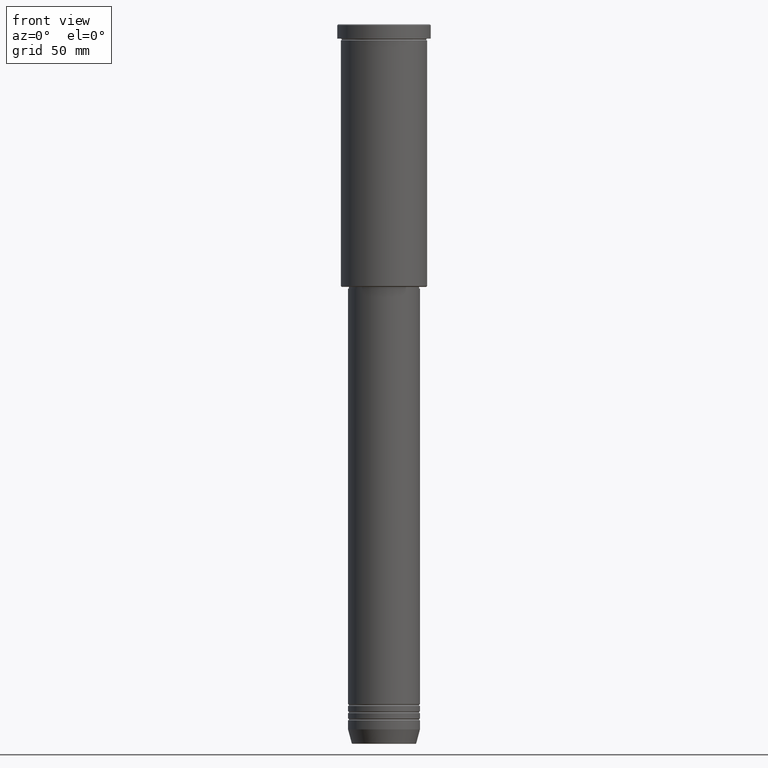
[diagram: clean part render]
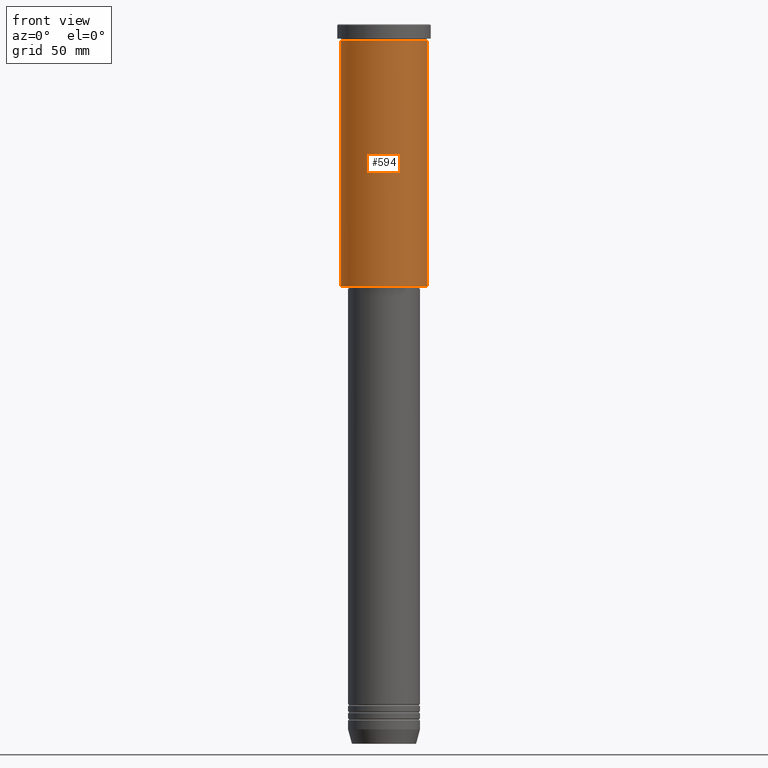
[diagram: same view with one face highlighted and labeled with its STEP entity id]
A machine part, front view. The second image highlights one B-rep face of the part: STEP entity #594.
In plain terms, the highlighted cylindrical surface (partial cylindrical patch) has radius 24 mm, axis along (-0, -0, 1).
Its self-contained STEP definition (entity closure, byte-faithful):
#66 = EDGE_CURVE ( 'NONE', #100, #983, #374, .T. ) ;
#100 = VERTEX_POINT ( 'NONE', #135 ) ;
#135 = CARTESIAN_POINT ( 'NONE',  ( -24.00000000000000000, 2.939152317953647894E-15, -8.999999999999994671 ) ) ;
#143 = ORIENTED_EDGE ( 'NONE', *, *, #693, .T. ) ;
#206 = VECTOR ( 'NONE', #759, 1000.000000000000000 ) ;
#221 = LINE ( 'NONE', #391, #206 ) ;
#236 = CARTESIAN_POINT ( 'NONE',  ( -24.00000000000000000, 2.939152317953647894E-15, -145.5000000000001421 ) ) ;
#325 = EDGE_CURVE ( 'NONE', #552, #1164, #827, .T. ) ;
#327 = DIRECTION ( 'NONE',  ( 1.000000000000000000, 0.000000000000000000, 0.000000000000000000 ) ) ;
#331 = ORIENTED_EDGE ( 'NONE', *, *, #66, .F. ) ;
#333 = DIRECTION ( 'NONE',  ( -0.000000000000000000, -0.000000000000000000, 1.000000000000000000 ) ) ;
#374 = CIRCLE ( 'NONE', #488, 24.00000000000000000 ) ;
#391 = CARTESIAN_POINT ( 'NONE',  ( -24.00000000000000000, 2.939152317953647894E-15, 0.000000000000000000 ) ) ;
#418 = FACE_OUTER_BOUND ( 'NONE', #986, .T. ) ;
#488 = AXIS2_PLACEMENT_3D ( 'NONE', #1024, #863, #327 ) ;
#552 = VERTEX_POINT ( 'NONE', #236 ) ;
#556 = EDGE_CURVE ( 'NONE', #552, #100, #221, .T. ) ;
#558 = CARTESIAN_POINT ( 'NONE',  ( 24.00000000000000000, 0.000000000000000000, -8.999999999999994671 ) ) ;
#589 = DIRECTION ( 'NONE',  ( -0.000000000000000000, -0.000000000000000000, 1.000000000000000000 ) ) ;
#594 = ADVANCED_FACE ( 'NONE', ( #418 ), #928, .T. ) ;
#614 = ORIENTED_EDGE ( 'NONE', *, *, #325, .T. ) ;
#681 = DIRECTION ( 'NONE',  ( 1.000000000000000000, 0.000000000000000000, 0.000000000000000000 ) ) ;
#693 = EDGE_CURVE ( 'NONE', #1164, #983, #1119, .T. ) ;
#742 = DIRECTION ( 'NONE',  ( -1.000000000000000000, 0.000000000000000000, 0.000000000000000000 ) ) ;
#759 = DIRECTION ( 'NONE',  ( -0.000000000000000000, -0.000000000000000000, 1.000000000000000000 ) ) ;
#786 = ORIENTED_EDGE ( 'NONE', *, *, #556, .F. ) ;
#827 = CIRCLE ( 'NONE', #1131, 24.00000000000000000 ) ;
#863 = DIRECTION ( 'NONE',  ( -0.000000000000000000, -0.000000000000000000, 1.000000000000000000 ) ) ;
#872 = CARTESIAN_POINT ( 'NONE',  ( 24.00000000000000000, 0.000000000000000000, 0.000000000000000000 ) ) ;
#887 = DIRECTION ( 'NONE',  ( -0.000000000000000000, -0.000000000000000000, 1.000000000000000000 ) ) ;
#898 = AXIS2_PLACEMENT_3D ( 'NONE', #1142, #589, #681 ) ;
#928 = CYLINDRICAL_SURFACE ( 'NONE', #898, 24.00000000000000000 ) ;
#983 = VERTEX_POINT ( 'NONE', #558 ) ;
#986 = EDGE_LOOP ( 'NONE', ( #786, #614, #143, #331 ) ) ;
#988 = CARTESIAN_POINT ( 'NONE',  ( 0.000000000000000000, 0.000000000000000000, -145.5000000000001421 ) ) ;
#1024 = CARTESIAN_POINT ( 'NONE',  ( 0.000000000000000000, 0.000000000000000000, -8.999999999999994671 ) ) ;
#1119 = LINE ( 'NONE', #872, #1169 ) ;
#1131 = AXIS2_PLACEMENT_3D ( 'NONE', #988, #333, #742 ) ;
#1142 = CARTESIAN_POINT ( 'NONE',  ( 0.000000000000000000, 0.000000000000000000, 0.000000000000000000 ) ) ;
#1155 = CARTESIAN_POINT ( 'NONE',  ( 24.00000000000000000, 0.000000000000000000, -145.5000000000001421 ) ) ;
#1164 = VERTEX_POINT ( 'NONE', #1155 ) ;
#1169 = VECTOR ( 'NONE', #887, 1000.000000000000000 ) ;